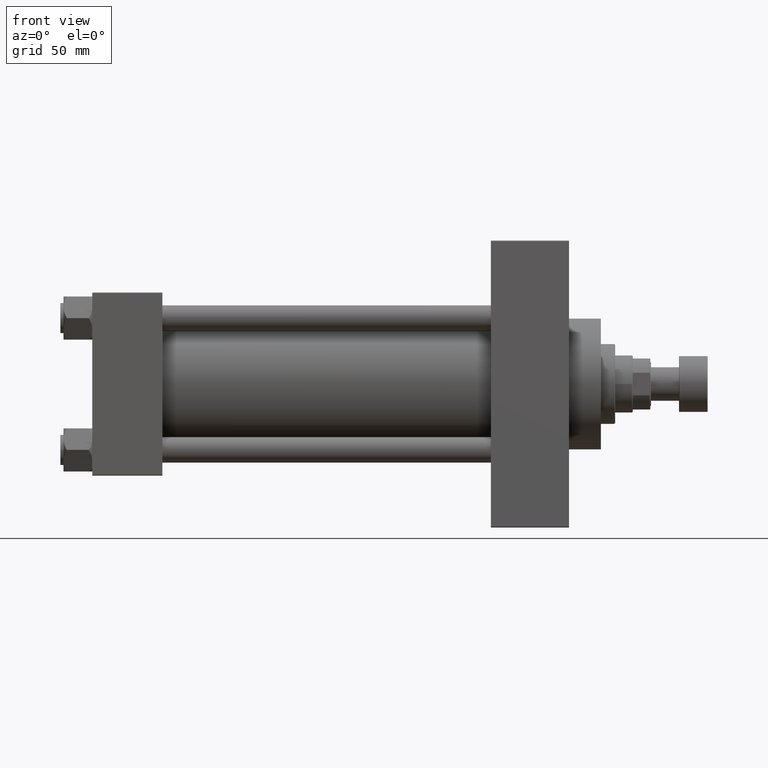
[diagram: clean part render]
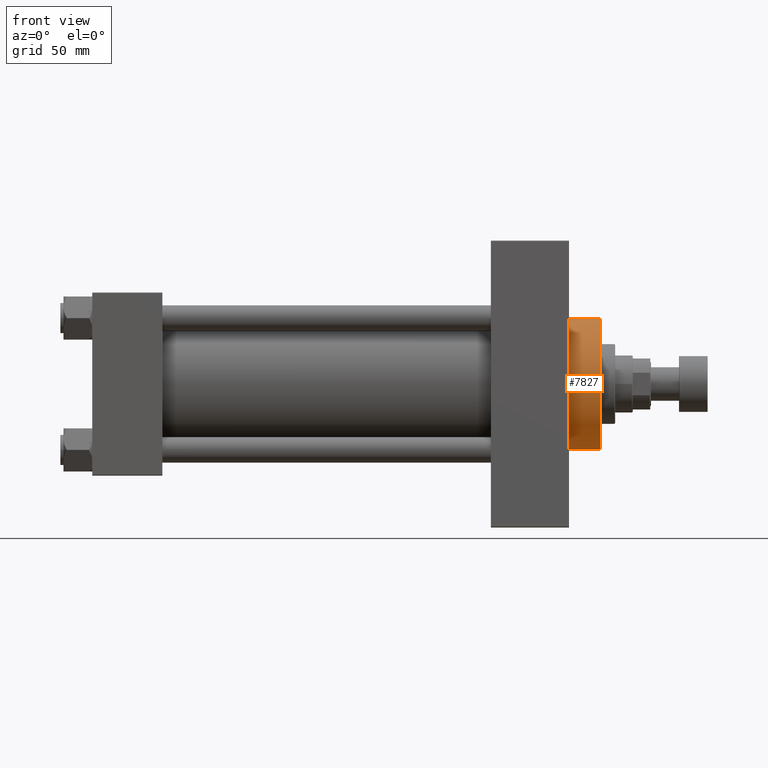
[diagram: same view with one face highlighted and labeled with its STEP entity id]
A machine part, front view. The second image highlights one B-rep face of the part: STEP entity #7827.
In plain terms, the highlighted cylindrical surface (partial cylindrical patch) has radius 41 mm, axis along (-1, -0, -0).
Its self-contained STEP definition (entity closure, byte-faithful):
#398 = DIRECTION ( 'NONE',  ( -1.000000000000000000, -0.000000000000000000, -0.000000000000000000 ) ) ;
#697 = DIRECTION ( 'NONE',  ( 1.000000000000000000, 0.000000000000000000, 0.000000000000000000 ) ) ;
#3096 = DIRECTION ( 'NONE',  ( 1.000000000000000000, 0.000000000000000000, 0.000000000000000000 ) ) ;
#3648 = DIRECTION ( 'NONE',  ( 0.000000000000000000, 0.000000000000000000, 1.000000000000000000 ) ) ;
#4033 = CARTESIAN_POINT ( 'NONE',  ( 299.0000000000000000, 0.000000000000000000, 0.000000000000000000 ) ) ;
#5913 = CIRCLE ( 'NONE', #40262, 41.00000000000000000 ) ;
#6104 = EDGE_CURVE ( 'NONE', #33487, #8299, #30459, .T. ) ;
#7827 = ADVANCED_FACE ( 'NONE', ( #15359 ), #11448, .T. ) ;
#7887 = VECTOR ( 'NONE', #398, 1000.000000000000000 ) ;
#8034 = CARTESIAN_POINT ( 'NONE',  ( 319.0000000000000000, 0.000000000000000000, 0.000000000000000000 ) ) ;
#8260 = DIRECTION ( 'NONE',  ( 0.000000000000000000, 0.000000000000000000, -1.000000000000000000 ) ) ;
#8299 = VERTEX_POINT ( 'NONE', #9674 ) ;
#9674 = CARTESIAN_POINT ( 'NONE',  ( 299.0000000000000000, 0.000000000000000000, 41.00000000000000000 ) ) ;
#11206 = DIRECTION ( 'NONE',  ( -1.000000000000000000, -0.000000000000000000, -0.000000000000000000 ) ) ;
#11448 = CYLINDRICAL_SURFACE ( 'NONE', #23570, 41.00000000000000000 ) ;
#15359 = FACE_OUTER_BOUND ( 'NONE', #43043, .T. ) ;
#17016 = CARTESIAN_POINT ( 'NONE',  ( 319.0000000000000000, 0.000000000000000000, 41.00000000000000000 ) ) ;
#17085 = DIRECTION ( 'NONE',  ( -1.000000000000000000, -0.000000000000000000, -0.000000000000000000 ) ) ;
#18074 = ORIENTED_EDGE ( 'NONE', *, *, #36498, .T. ) ;
#21470 = VERTEX_POINT ( 'NONE', #31836 ) ;
#23522 = VERTEX_POINT ( 'NONE', #37120 ) ;
#23570 = AXIS2_PLACEMENT_3D ( 'NONE', #8034, #11206, #3648 ) ;
#26281 = DIRECTION ( 'NONE',  ( 0.000000000000000000, 0.000000000000000000, -1.000000000000000000 ) ) ;
#26532 = CARTESIAN_POINT ( 'NONE',  ( 319.0000000000000000, 0.000000000000000000, 41.00000000000000000 ) ) ;
#27853 = ORIENTED_EDGE ( 'NONE', *, *, #6104, .T. ) ;
#28672 = AXIS2_PLACEMENT_3D ( 'NONE', #44255, #697, #8260 ) ;
#30459 = LINE ( 'NONE', #26532, #7887 ) ;
#31544 = CARTESIAN_POINT ( 'NONE',  ( 319.0000000000000000, 5.021051876504148963E-15, -41.00000000000000000 ) ) ;
#31639 = ORIENTED_EDGE ( 'NONE', *, *, #42766, .F. ) ;
#31836 = CARTESIAN_POINT ( 'NONE',  ( 299.0000000000000000, 5.021051876504148963E-15, -41.00000000000000000 ) ) ;
#33487 = VERTEX_POINT ( 'NONE', #17016 ) ;
#36498 = EDGE_CURVE ( 'NONE', #8299, #21470, #5913, .T. ) ;
#37120 = CARTESIAN_POINT ( 'NONE',  ( 319.0000000000000000, 5.021051876504148963E-15, -41.00000000000000000 ) ) ;
#37240 = VECTOR ( 'NONE', #17085, 1000.000000000000000 ) ;
#39176 = EDGE_CURVE ( 'NONE', #33487, #23522, #45072, .T. ) ;
#40262 = AXIS2_PLACEMENT_3D ( 'NONE', #4033, #3096, #26281 ) ;
#42555 = LINE ( 'NONE', #31544, #37240 ) ;
#42766 = EDGE_CURVE ( 'NONE', #23522, #21470, #42555, .T. ) ;
#43043 = EDGE_LOOP ( 'NONE', ( #31639, #46079, #27853, #18074 ) ) ;
#44255 = CARTESIAN_POINT ( 'NONE',  ( 319.0000000000000000, 0.000000000000000000, 0.000000000000000000 ) ) ;
#45072 = CIRCLE ( 'NONE', #28672, 41.00000000000000000 ) ;
#46079 = ORIENTED_EDGE ( 'NONE', *, *, #39176, .F. ) ;